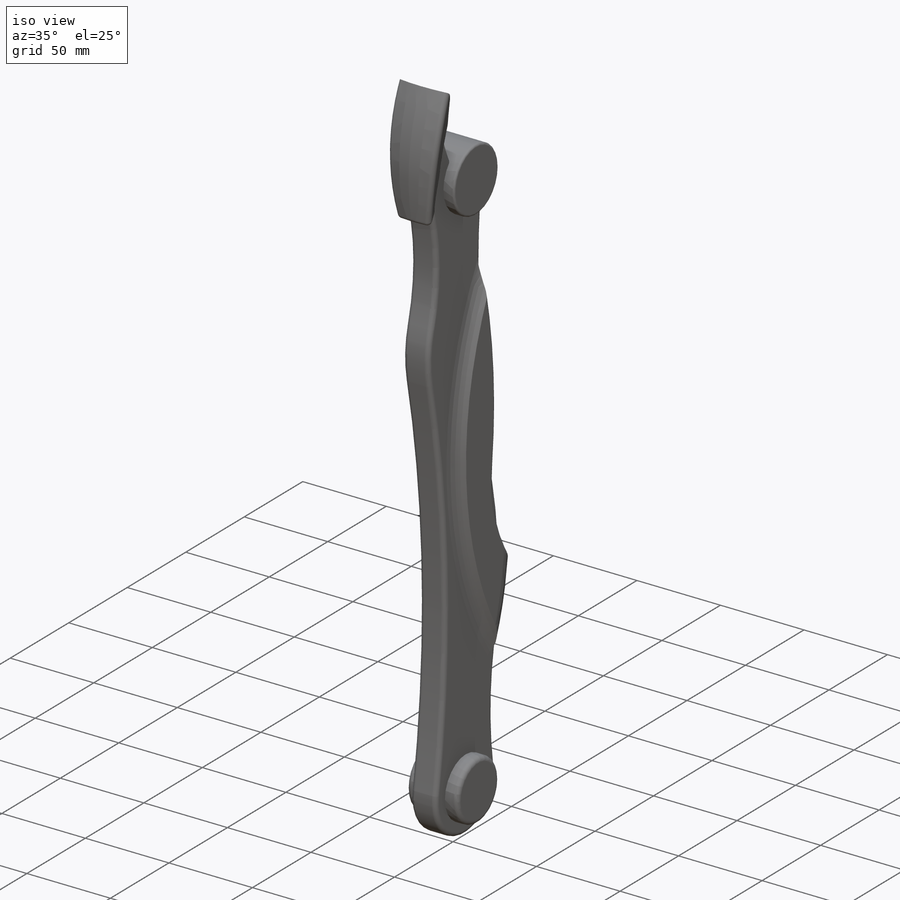
[diagram: iso view]
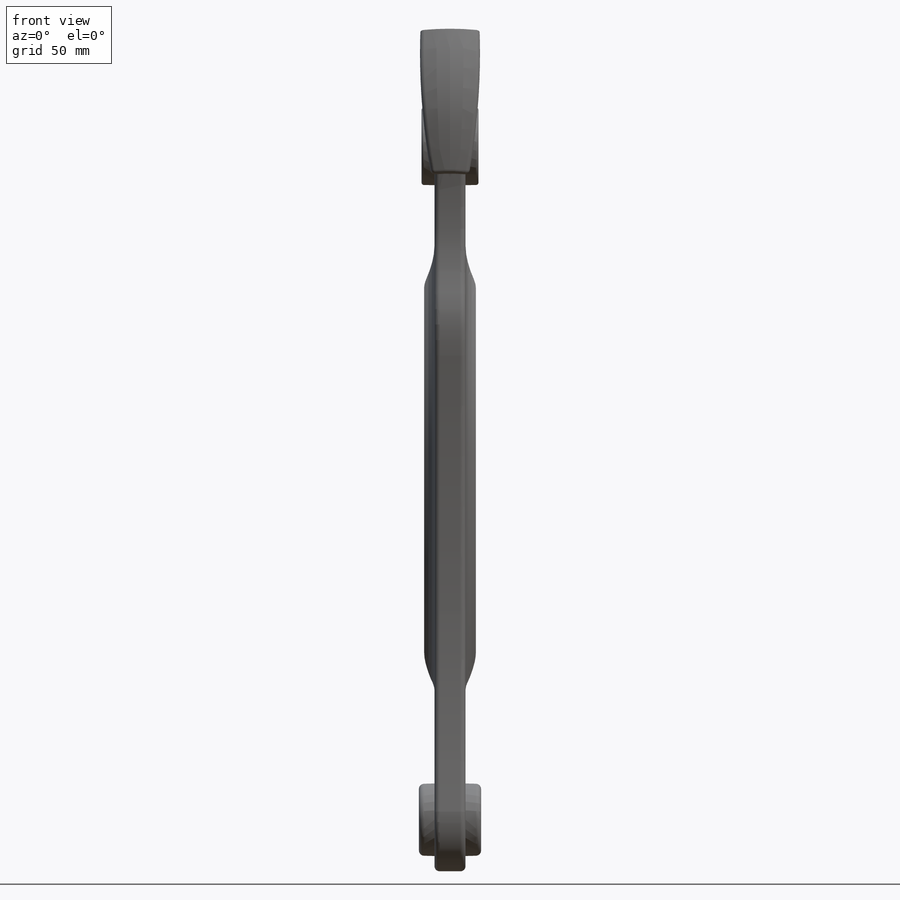
[diagram: front view]
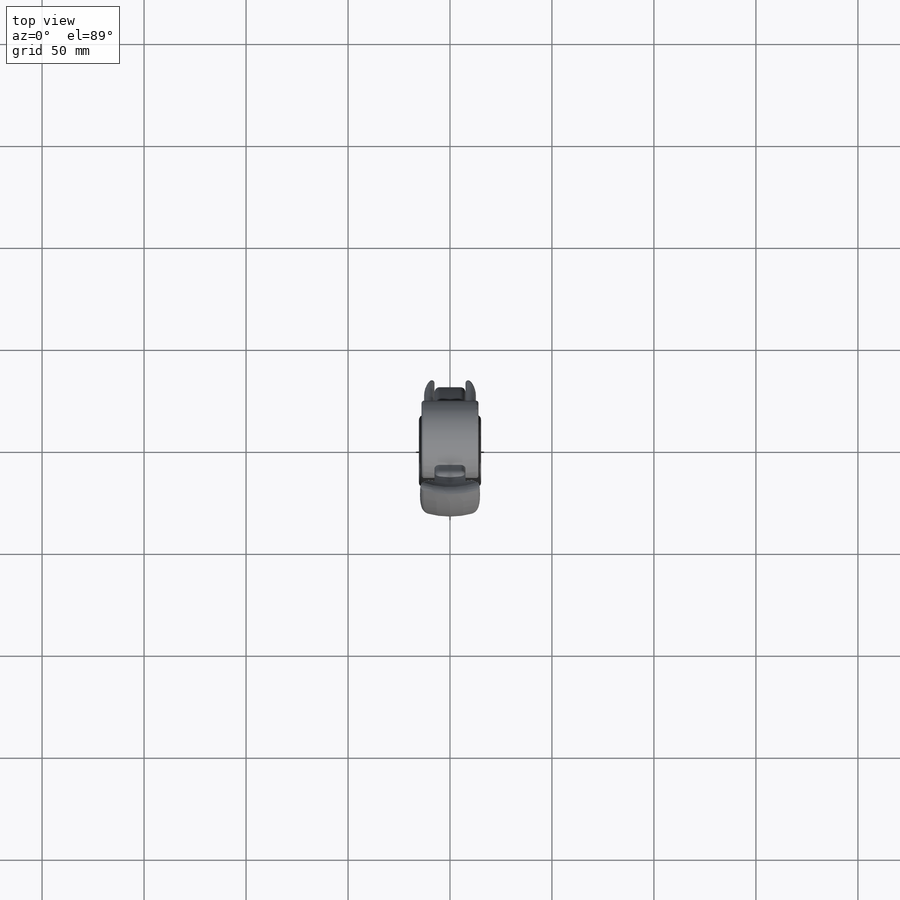
[diagram: top view]
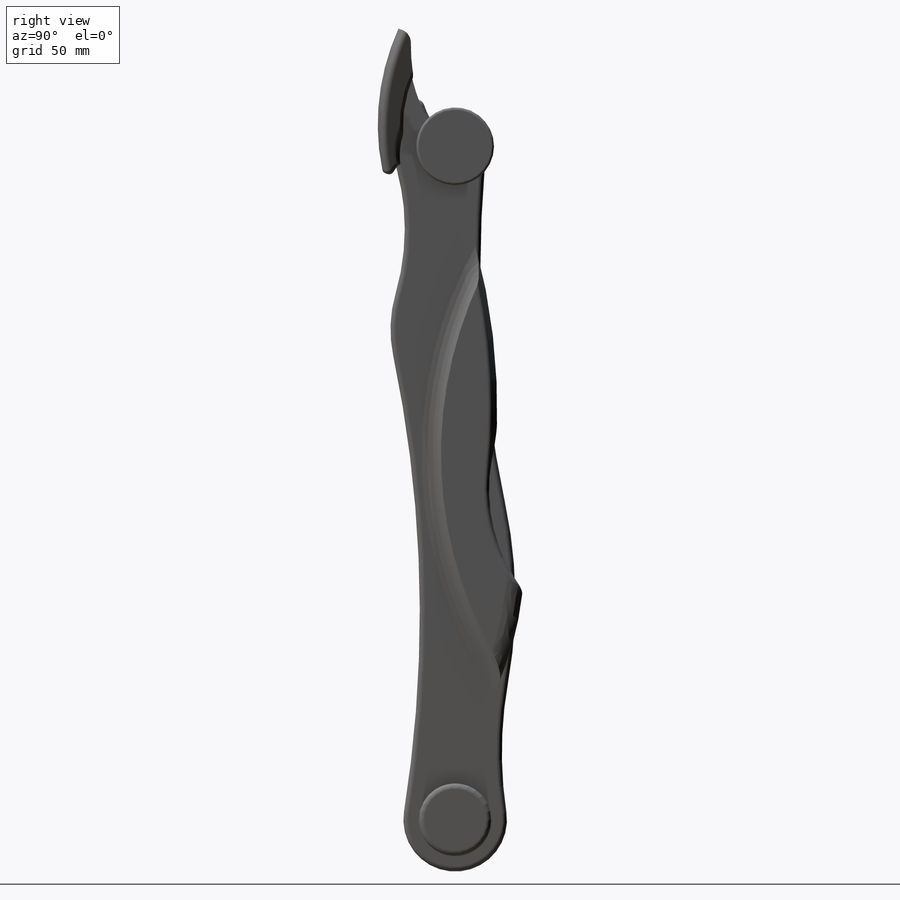
[diagram: right view]
SOLIDWORKS PART (.sldprt)
format: sldprt  version: not decoded by parser v0  size: 761,344 bytes
history: native  units: mm
features: fillet x11, sketch x6, extrude x4, mirror x2, material x1, revolve x1, cut_extrude x1 (+13 scaffold rows collapsed)
feature tree (39):
  scaffold x13  (default folders/planes/origin — collapsed)
  material  "Material <not specified>"
  sketch  "Sketch1"  dims[D1=38.1mm]
  extrude  "Boss-Extrude1"  Depth=27.94mm
  fillet  "Fillet1"  Radius=1.27mm
  sketch  "Sketch2"  dims[c1.D2=25.4mm c1.D4=3.81mm c1.D16=381.0mm c1.D17=558.8mm c2.D16=228.6mm c2.D1=330.2mm c2.D3=20.32mm c2.D5=15.24mm c2.D6=6.35mm c2.D7=30.48mm c2.D8=7.62mm c2.D9=63.5mm c2.D10=30.48mm c2.D11=158.75mm c2.D12=3.81mm c2.D13=10.16mm c2.D14=165.1mm c2.D15=63.5mm c3.D11=223.52mm c3.D16=118.11mm]
  extrude  "Boss-Extrude2"  Depth=15.24mm
  sketch  "Sketch3"  dims[D1=35.56mm]
  extrude  "Boss-Extrude3"  Depth=7.62mm
  fillet  "Fillet2"  Radius=2.54mm
  fillet  "Fillet3"  Radius=2.54mm
  sketch  "Sketch4"  dims[D2=203.2mm D3=304.8mm D6=152.4mm D1=58.42mm D4=101.6mm D5=11.43mm D7=45.72mm]
  extrude  "Boss-Extrude4"  Depth=5.08mm
  mirror  "Mirror1"
  fillet  "Fillet4"  Radius=11.43mm
  fillet  "Fillet5"  Radius=12.7mm
  fillet  "Fillet7"  Radius=1.27mm
  fillet  "Fillet8"  Radius=2.54mm
  sketch  "Sketch5"  dims[D7=114.3mm D8=25.4mm D9=31.75mm D10=88.9mm D11=7.62mm D1=33.02mm D2=6.35mm D3=5.08mm D4=3.81mm D5=76.2mm D6=6.35mm]
  revolve  "Revolve1"  Angle=40deg
  fillet  "Fillet9"  Radius=5.08mm
  fillet  "Fillet10"  Radius=2.54mm
  fillet  "Fillet11"  Radius=2.54mm
  sketch  "Sketch6"  dims[D5=57.15mm D1=6.35mm D2=12.7mm D3=15.24mm D4=~11.478047mm]
  cut_extrude  "Cut-Extrude1"  Depth=6.35mm
  mirror  "Mirror3"
  fillet  "Fillet12"  Radius=2.54mm
decode coverage: 23 of 25 modeling features carry decoded parameters
note: ~ marks probable driven/reference dimensions
note: suppression state not decoded; provenance and decode notes live in map.json
